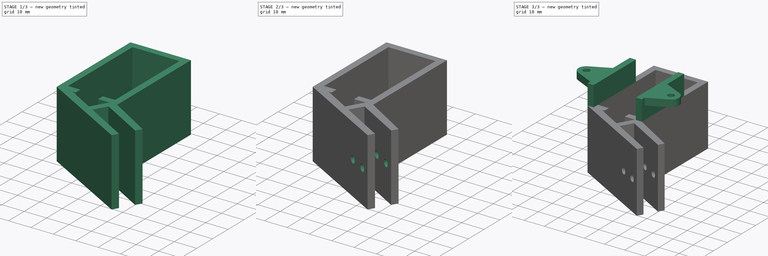
[diagram: build sequence overview — one tinted view per stage of 3, left to right]
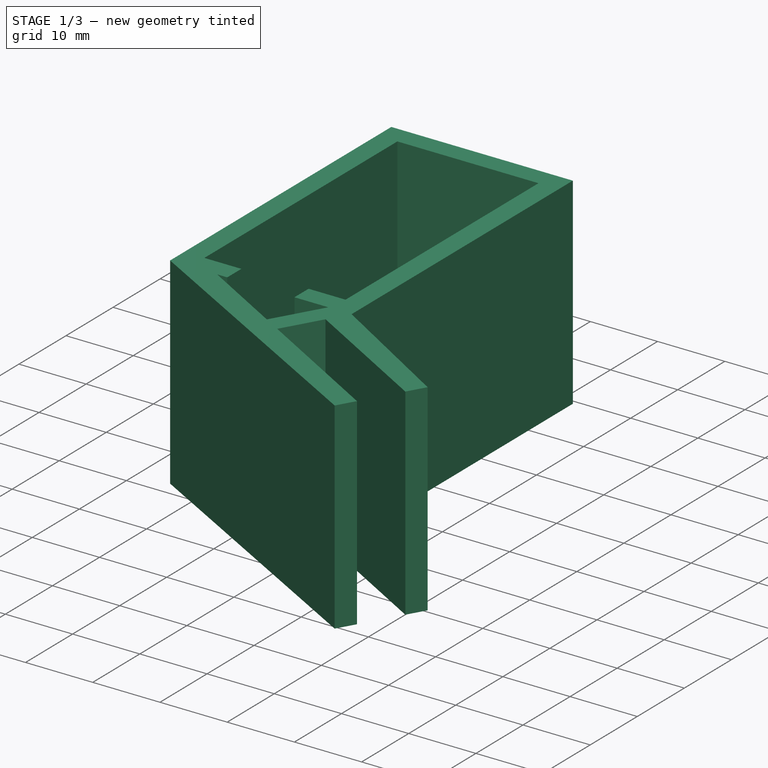
[diagram: stage 1 of 3 — iso view after this stage's code; geometry added in this stage tinted green]
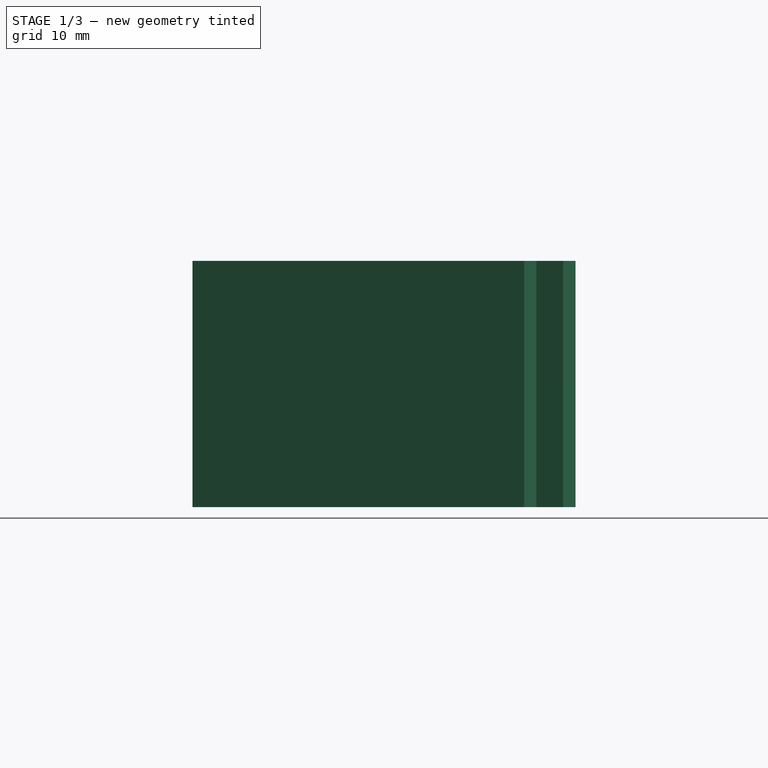
[diagram: stage 1 of 3 — front view after this stage's code; geometry added in this stage tinted green]
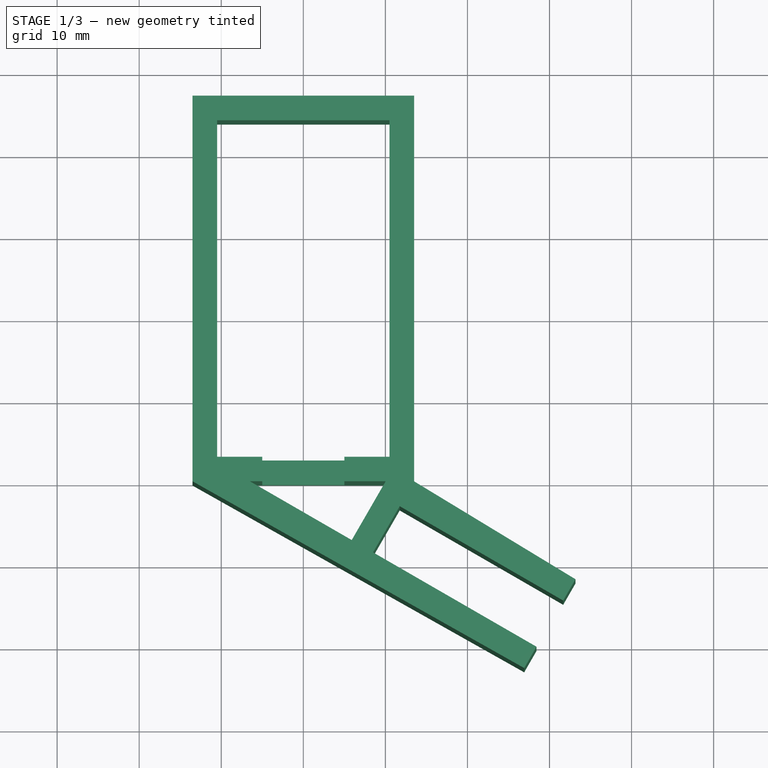
[diagram: stage 1 of 3 — top view after this stage's code; geometry added in this stage tinted green]
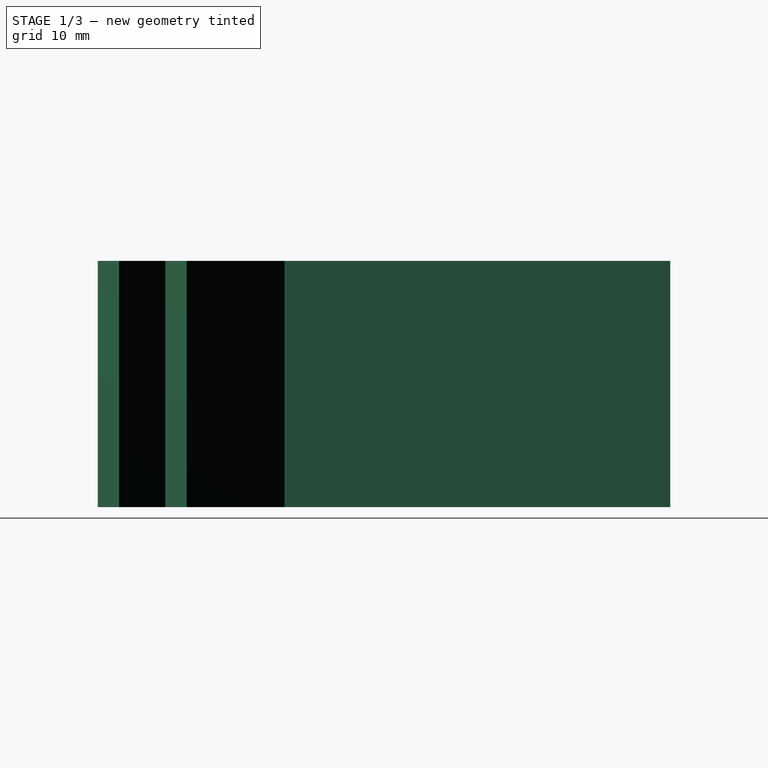
[diagram: stage 1 of 3 — right view after this stage's code; geometry added in this stage tinted green]
FCSTD DOCUMENT  (FreeCAD 0.20R29603 (Git))
Label: 4_UpperArm_v2
License: All rights reserved
LicenseURL: http://en.wikipedia.org/wiki/All_rights_reserved
objects: Sketcher::SketchObject×5, PartDesign::Pad×3, PartDesign::Pocket×2, PartDesign::Body×1
note: 16 computed .brp shape members not serialized (recipe doc carries the construction recipe); baked Part::Feature solids carry a one-line shape summary decoded from their .brp

FEATURE [Sketcher::SketchObject] Sketch
  FullyConstrained = true
  MapMode = 5
  Support = -> [XY_Plane]
  sketch-geometry (22):
    g0: LineSegment StartX=13.5 StartY=0 StartZ=0 EndX=13.5 EndY=47 EndZ=0
    g1: LineSegment StartX=13.5 StartY=47 StartZ=0 EndX=-13.5 EndY=47 EndZ=0
    g2: LineSegment StartX=-13.5 StartY=47 StartZ=0 EndX=-13.5 EndY=0 EndZ=0
    g3: LineSegment StartX=-10.5 StartY=3 StartZ=0 EndX=10.5 EndY=3 EndZ=0
    g4: LineSegment StartX=10.5 StartY=3 StartZ=0 EndX=10.5 EndY=44 EndZ=0
    g5: LineSegment StartX=10.5 StartY=44 StartZ=0 EndX=-10.5 EndY=44 EndZ=0
    g6: LineSegment StartX=-10.5 StartY=44 StartZ=0 EndX=-10.5 EndY=3 EndZ=0
    g7: LineSegment StartX=0 StartY=0 StartZ=0 EndX=30.0436 EndY=-17.3457 EndZ=0
    g8: LineSegment StartX=-13.5 StartY=0 StartZ=0 EndX=26.9186 EndY=-22.7583 EndZ=0
    g9: LineSegment StartX=13.5 StartY=0 StartZ=0 EndX=33.1686 EndY=-11.933 EndZ=0
    g10: LineSegment StartX=26.9186 StartY=-22.7583 StartZ=0 EndX=28.4186 EndY=-20.1603 EndZ=0
    g11: LineSegment StartX=28.4186 StartY=-20.1603 StartZ=0 EndX=8.5 EndY=-8.66025 EndZ=0
    g12: LineSegment StartX=8.5 StartY=-8.66025 StartZ=0 EndX=11.75 EndY=-3.03109 EndZ=0
    g13: LineSegment StartX=11.75 StartY=-3.03109 StartZ=0 EndX=31.6686 EndY=-14.5311 EndZ=0
    g14: LineSegment StartX=31.6686 StartY=-14.5311 StartZ=0 EndX=33.1686 EndY=-11.933 EndZ=0
    g15: LineSegment StartX=26.9186 StartY=-22.7583 StartZ=0 EndX=33.1686 EndY=-11.933 EndZ=0
    g16: LineSegment StartX=-6.5 StartY=0 StartZ=0 EndX=10.0359 EndY=0 EndZ=0
    g17: LineSegment StartX=-6.5 StartY=0 StartZ=0 EndX=5.90192 EndY=-7.16025 EndZ=0
    g18: LineSegment StartX=5.90192 StartY=-7.16025 StartZ=0 EndX=10.0359 EndY=0 EndZ=0
    g19: LineSegment StartX=5.90192 StartY=-7.16025 StartZ=0 EndX=8.5 EndY=-8.66025 EndZ=0
    g20: LineSegment StartX=11.75 StartY=-3.03109 StartZ=0 EndX=13.5 EndY=0 EndZ=0
    g21: GeomPoint X=10.125 Y=-5.84567 Z=0
  constraints (57):
    c: Coincident(g0,g1)
    c: Coincident(g1,g2)
    c: Vertical(g0)
    c: Vertical(g2)
    c: PointOnObject(g2,g-1)
    c: Symmetric(g1,g0,g-2)
    c: Coincident(g3,g4)
    c: Coincident(g4,g5)
    c: Coincident(g5,g6)
    c: Coincident(g6,g3)
    c: Horizontal(g3)
    c: Vertical(g4)
    c: Vertical(g6)
    c: Symmetric(g5,g4,g-2)
    c: DistanceX(g3,g3) = 21
    c: DistanceY(g4,g4) = 41
    c: DistanceY(g0,g3) = 3
    c: DistanceX(g4,g0) = 3
    c: DistanceY(g4,g0) = 3
    c: Coincident(g7,g-1)
    c: Symmetric(g8,g9,g7)
    c: Coincident(g10,g8)
    c: Coincident(g13,g12)
    c: Coincident(g14,g9)
    c: Symmetric(g11,g12,g7)
    c: Coincident(g12,g11)
    c: Distance(g12) = 6.5
    c: Symmetric(g13,g10,g7)
    c: Coincident(g14,g13)
    c: Distance(g10) = 3
    c: Coincident(g11,g10)
    c: Parallel(g11,g7)
    c: Coincident(g15,g8)
    c: Coincident(g15,g9)
    c: PointOnObject(g10,g15)
    c: PointOnObject(g7,g15)
    c: Coincident(g0,g9)
    c: PointOnObject(g0,g-1)
    c: Angle(g7,g-1) = 0.523599
    c: Coincident(g8,g2)
    c: PointOnObject(g16,g-1)
    c: PointOnObject(g16,g-1)
    c: Coincident(g17,g16)
    c: Coincident(g18,g16)
    c: Parallel(g18,g12)
    c: Coincident(g17,g18)
    c: Coincident(g19,g17)
    c: Coincident(g19,g11)
    c: Parallel(g19,g11)
    c: Parallel(g17,g19)
    c: Coincident(g20,g12)
    c: Coincident(g20,g0)
    c: Parallel(g12,g20)
    c: Distance(g19) = 3
    c: PointOnObject(g21,g12)
    c: PointOnObject(g21,g7)
    c: Distance(g21,g7) = 23
FEATURE [PartDesign::Pad] Pad
  Direction = (0,0,1)
  Length = 30
  Length2 = 10
  Profile = -> Sketch
  ReferenceAxis = -> Sketch [N_Axis]
  Type = 0
FEATURE [Sketcher::SketchObject] Sketch001
  ExternalGeometry = -> [Pad]
  FullyConstrained = true
  MapMode = 5
  Placement = pos=(0,3,0) rot=(0,0.707107,0.707107;3.14159rad)
  Support = -> [Pad]
  sketch-geometry (4):
    g0: LineSegment StartX=-5 StartY=30 StartZ=0 EndX=5 EndY=30 EndZ=0
    g1: LineSegment StartX=5 StartY=30 StartZ=0 EndX=5 EndY=3 EndZ=0
    g2: LineSegment StartX=5 StartY=3 StartZ=0 EndX=-5 EndY=3 EndZ=0
    g3: LineSegment StartX=-5 StartY=3 StartZ=0 EndX=-5 EndY=30 EndZ=0
  constraints (11):
    c: Coincident(g0,g1)
    c: Coincident(g1,g2)
    c: Coincident(g2,g3)
    c: Coincident(g3,g0)
    c: Horizontal(g2)
    c: Vertical(g1)
    c: Vertical(g3)
    c: PointOnObject(g0,g-3)
    c: Symmetric(g0,g0,g-2)
    c: DistanceX(g0,g0) = 10
    c: DistanceY(g1,g1) = 27
FEATURE [PartDesign::Pocket] Pocket
  BaseFeature = -> Pad
  Direction = (0,-1,2e-16)
  Length = 3.1
  Length2 = 5
  Profile = -> Sketch001
  ReferenceAxis = -> Sketch001 [N_Axis]
  Type = 0
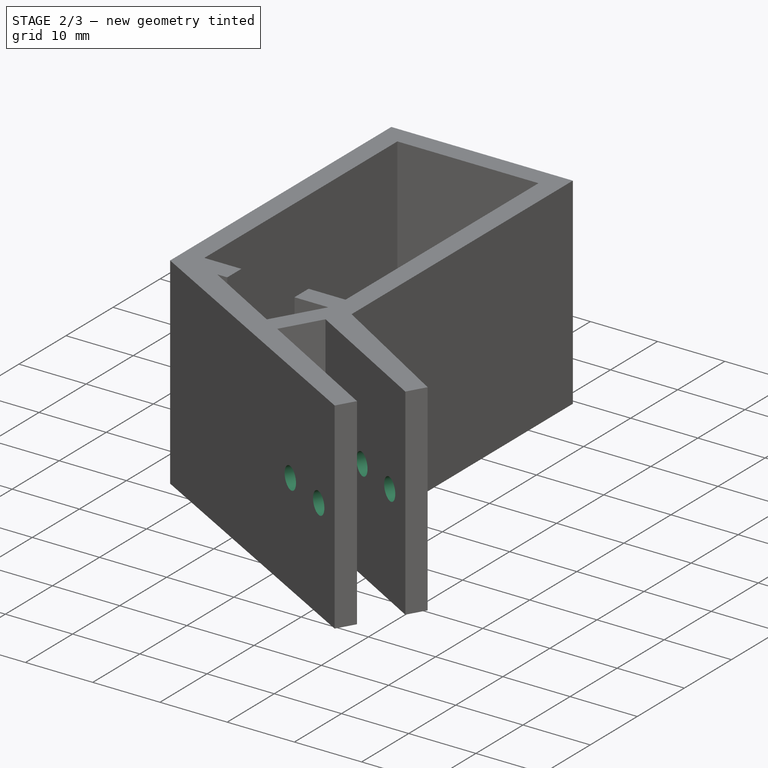
[diagram: stage 2 of 3 — iso view after this stage's code; geometry added in this stage tinted green]
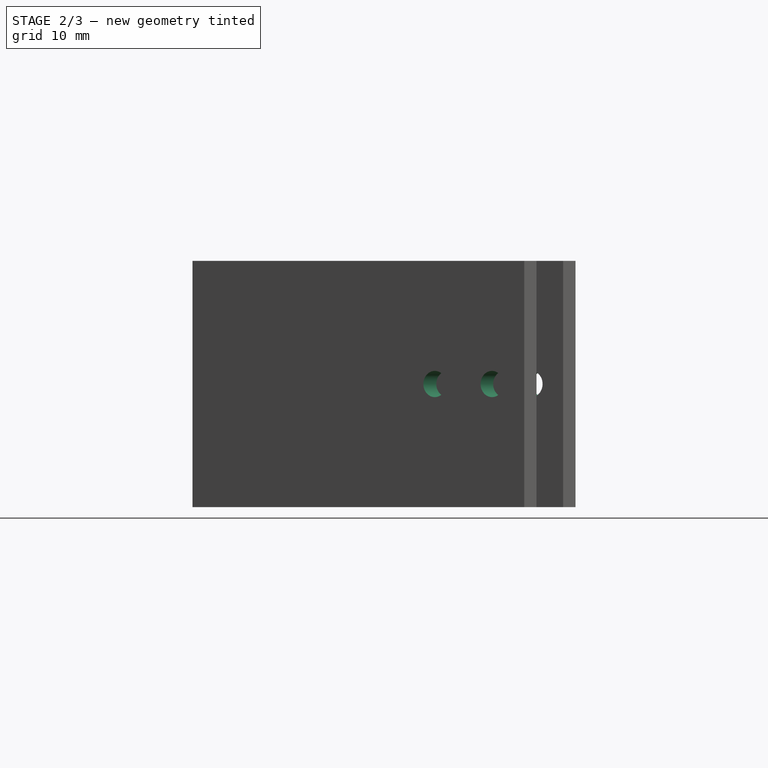
[diagram: stage 2 of 3 — front view after this stage's code; geometry added in this stage tinted green]
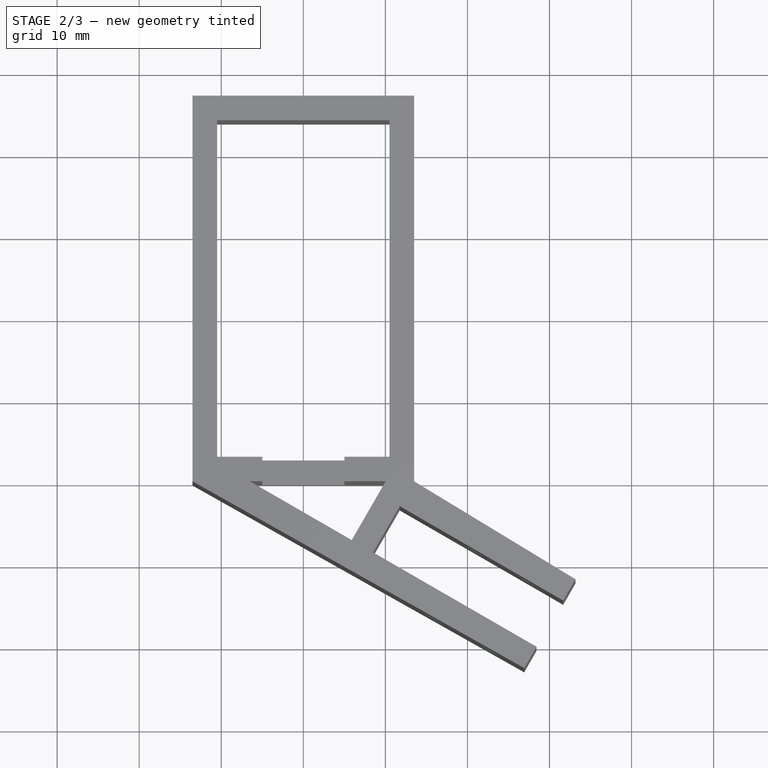
[diagram: stage 2 of 3 — top view after this stage's code; geometry added in this stage tinted green]
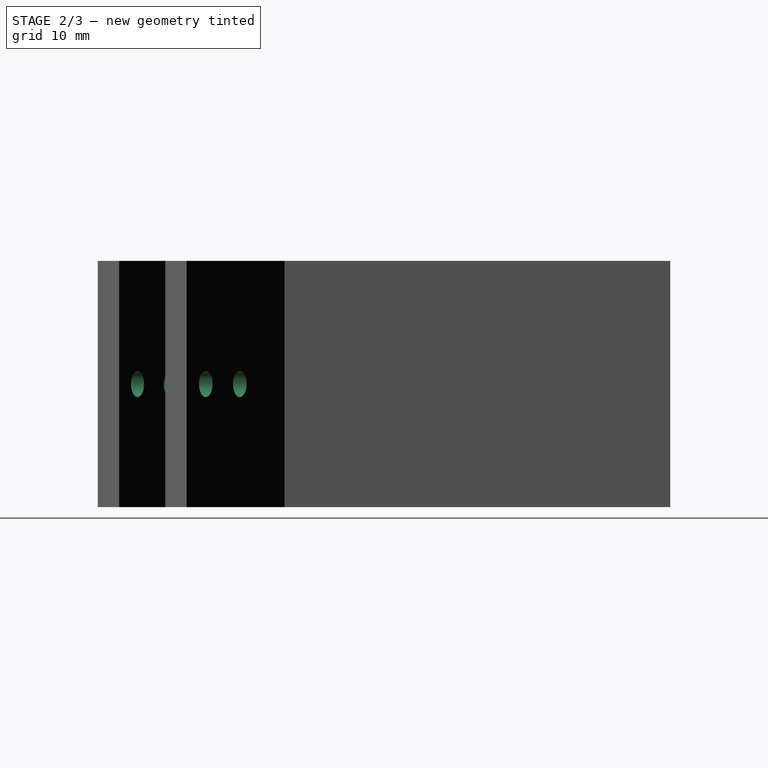
[diagram: stage 2 of 3 — right view after this stage's code; geometry added in this stage tinted green]
FEATURE [Sketcher::SketchObject] Sketch002
  ExternalGeometry = -> [Pocket]
  FullyConstrained = true
  MapMode = 5
  Placement = pos=(-1.625,-2.81458,0) rot=(0.186157,0.694747,0.694747;2.77349rad)
  Support = -> [Pocket]
  sketch-geometry (3):
    g0: LineSegment StartX=-30.1913 StartY=15 StartZ=0 EndX=-22.1913 EndY=15 EndZ=0
    g1: Circle CenterX=-30.1913 CenterY=15 CenterZ=0 NormalX=0 NormalY=0 NormalZ=1 AngleXU=0 Radius=1.6
    g2: Circle CenterX=-22.1913 CenterY=15 CenterZ=0 NormalX=0 NormalY=0 NormalZ=1 AngleXU=0 Radius=1.6
  constraints (7):
    c: DistanceX(g0,g0) = 8
    c: Equal(g1,g2)
    c: Diameter(g1) = 3.2
    c: Coincident(g1,g0)
    c: Coincident(g2,g0)
    c: DistanceX(g-3,g1) = 4.5
    c: Symmetric(g-3,g-4,g0)
FEATURE [PartDesign::Pocket] Pocket001
  BaseFeature = -> Pocket
  Direction = (-0.5,-0.866025,-1e-16)
  Length = 25
  Length2 = 5
  Midplane = true
  Profile = -> Sketch002
  ReferenceAxis = -> Sketch002 [N_Axis]
  Type = 0
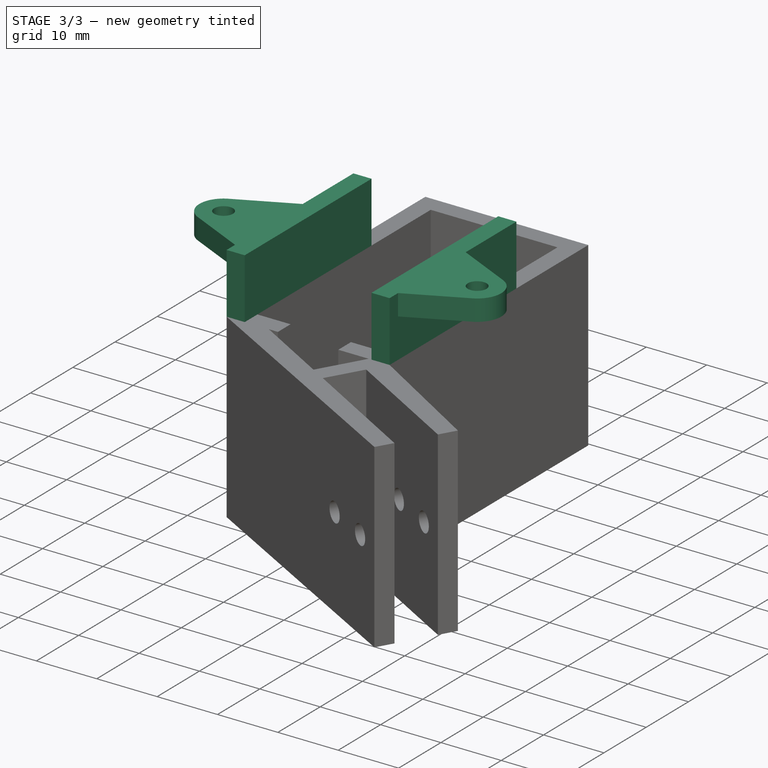
[diagram: stage 3 of 3 — iso view after this stage's code; geometry added in this stage tinted green]
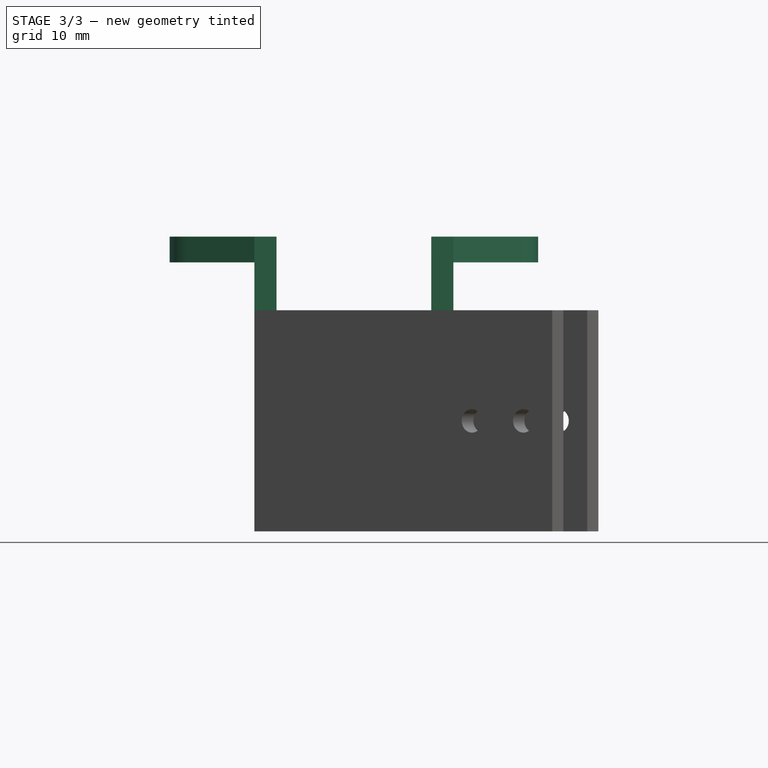
[diagram: stage 3 of 3 — front view after this stage's code; geometry added in this stage tinted green]
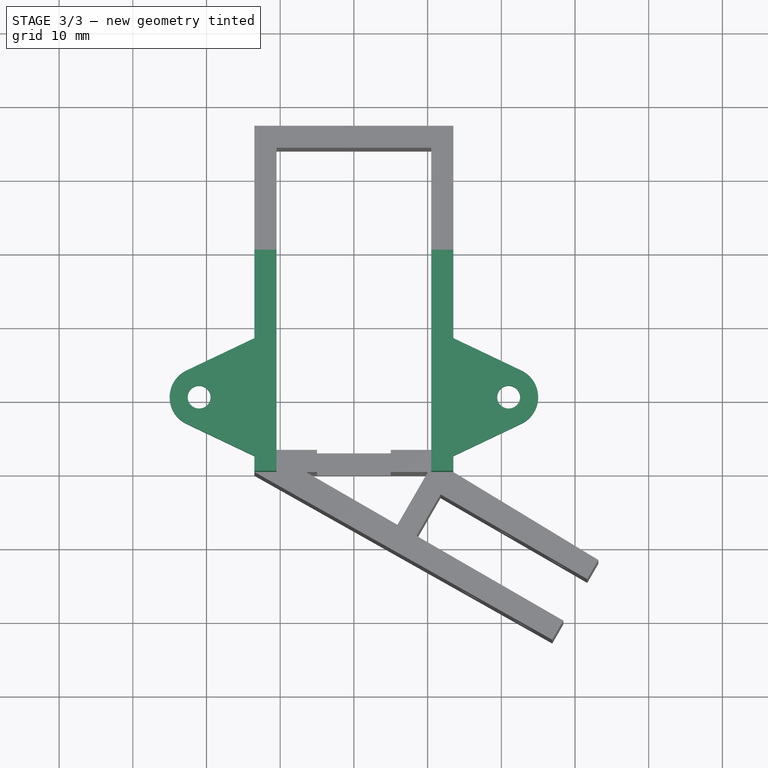
[diagram: stage 3 of 3 — top view after this stage's code; geometry added in this stage tinted green]
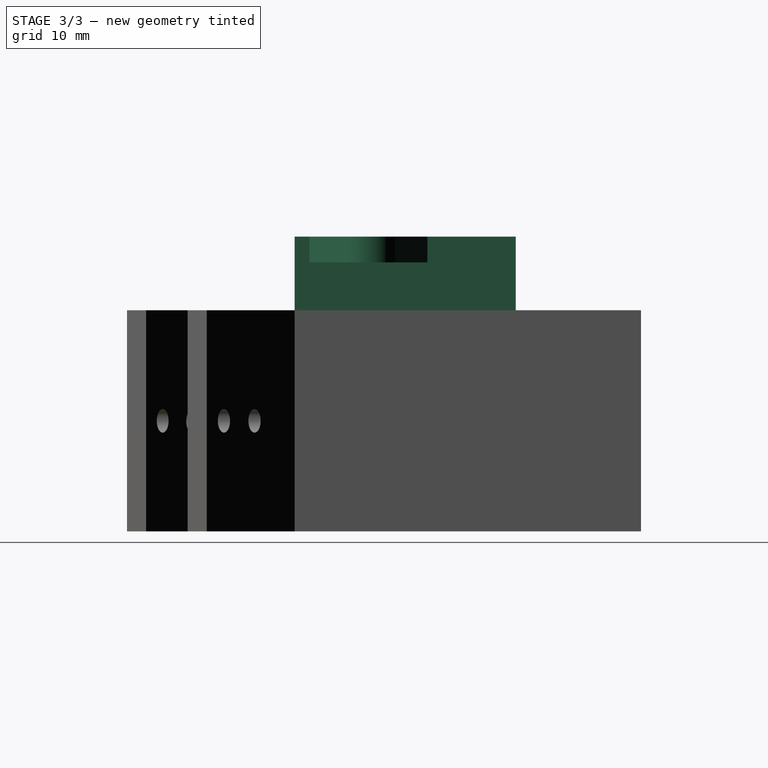
[diagram: stage 3 of 3 — right view after this stage's code; geometry added in this stage tinted green]
FEATURE [Sketcher::SketchObject] Sketch003
  ExternalGeometry = -> [Pocket001]
  FullyConstrained = true
  MapMode = 5
  Placement = pos=(0,0,30) rot=(0,0,1;0rad)
  Support = -> [Pocket001]
  sketch-geometry (8):
    g0: LineSegment StartX=-13.5 StartY=0 StartZ=0 EndX=-10.5 EndY=0 EndZ=0
    g1: LineSegment StartX=-10.5 StartY=0 StartZ=0 EndX=-10.5 EndY=30 EndZ=0
    g2: LineSegment StartX=-10.5 StartY=30 StartZ=0 EndX=-13.5 EndY=30 EndZ=0
    g3: LineSegment StartX=-13.5 StartY=30 StartZ=0 EndX=-13.5 EndY=0 EndZ=0
    g4: LineSegment StartX=10.5 StartY=0 StartZ=0 EndX=13.5 EndY=0 EndZ=0
    g5: LineSegment StartX=13.5 StartY=0 StartZ=0 EndX=13.5 EndY=30 EndZ=0
    g6: LineSegment StartX=13.5 StartY=30 StartZ=0 EndX=10.5 EndY=30 EndZ=0
    g7: LineSegment StartX=10.5 StartY=30 StartZ=0 EndX=10.5 EndY=0 EndZ=0
  constraints (21):
    c: Coincident(g0,g1)
    c: Coincident(g1,g2)
    c: Coincident(g2,g3)
    c: Coincident(g3,g0)
    c: Horizontal(g0)
    c: Horizontal(g2)
    c: Vertical(g1)
    c: Vertical(g3)
    c: Coincident(g4,g5)
    c: Coincident(g5,g6)
    c: Coincident(g6,g7)
    c: Coincident(g7,g4)
    c: Horizontal(g4)
    c: Horizontal(g6)
    c: Vertical(g5)
    c: Vertical(g7)
    c: PointOnObject(g1,g-4)
    c: Coincident(g0,g-3)
    c: DistanceY(g3,g3) = 30
    c: Symmetric(g4,g0,g-2)
    c: Symmetric(g5,g2,g-2)
FEATURE [PartDesign::Pad] Pad001
  BaseFeature = -> Pocket001
  Direction = (0,0,1)
  Length = 10
  Length2 = 10
  Profile = -> Sketch003
  ReferenceAxis = -> Sketch003 [N_Axis]
  Type = 0
FEATURE [Sketcher::SketchObject] Sketch004
  ExternalGeometry = -> [Pad001]
  FullyConstrained = true
  MapMode = 5
  Placement = pos=(0,0,40) rot=(0,0,1;0rad)
  Support = -> [Pad001]
  sketch-geometry (11):
    g0: Circle CenterX=-21 CenterY=10 CenterZ=0 NormalX=0 NormalY=0 NormalZ=1 AngleXU=0 Radius=1.55
    g1: LineSegment StartX=-13.5 StartY=18 StartZ=0 EndX=-13.5 EndY=2 EndZ=0
    g2: LineSegment StartX=-13.5 StartY=2 StartZ=0 EndX=-22.7192 EndY=6.38829 EndZ=0
    g3: LineSegment StartX=-13.5 StartY=18 StartZ=0 EndX=-22.7192 EndY=13.6117 EndZ=0
    g4: ArcOfCircle CenterX=-21 CenterY=10 CenterZ=0 NormalX=0 NormalY=0 NormalZ=1 AngleXU=0 Radius=4 StartAngle=2.01506 EndAngle=4.26813
    g5: Circle CenterX=21 CenterY=10 CenterZ=0 NormalX=0 NormalY=0 NormalZ=1 AngleXU=0 Radius=1.55
    g6: LineSegment StartX=22.7192 StartY=6.38829 StartZ=0 EndX=13.5 EndY=2 EndZ=0
    g7: LineSegment StartX=13.5 StartY=2 StartZ=0 EndX=13.5 EndY=18 EndZ=0
    g8: LineSegment StartX=13.5 StartY=18 StartZ=0 EndX=22.7192 EndY=13.6117 EndZ=0
    g9: ArcOfCircle CenterX=21 CenterY=10 CenterZ=0 NormalX=0 NormalY=0 NormalZ=1 AngleXU=0 Radius=4 StartAngle=5.15665 EndAngle=7.40972
    g10: LineSegment StartX=-21 StartY=10 StartZ=0 EndX=21 EndY=10 EndZ=0
  constraints (26):
    c: Vertical(g1)
    c: Coincident(g3,g1)
    c: Coincident(g4,g0)
    c: PointOnObject(g1,g-3)
    c: Coincident(g2,g1)
    c: DistanceY(g1,g1) = 16
    c: Diameter(g0) = 3.1
    c: Coincident(g6,g7)
    c: Vertical(g7)
    c: Coincident(g7,g8)
    c: Coincident(g9,g5)
    c: Symmetric(g1,g6,g-2)
    c: Equal(g1,g7)
    c: Coincident(g10,g0)
    c: Coincident(g10,g5)
    c: DistanceY(g-3,g0) = 10
    c: DistanceX(g10,g10) = 42
    c: Symmetric(g0,g5,g-2)
    c: Equal(g0,g5)
    c: Radius(g4) = 4
    c: Tangent(g4,g3) = -1.5708
    c: Tangent(g4,g2) = 1.5708
    c: Vertical(g3,g2)
    c: Equal(g4,g9)
    c: Tangent(g9,g6) = 1.5708
    c: Tangent(g9,g8) = 1.5708
FEATURE [PartDesign::Pad] Pad002
  BaseFeature = -> Pad001
  Direction = (0,0,1)
  Length = 3.5
  Length2 = 10
  Profile = -> Sketch004
  ReferenceAxis = -> Sketch004 [N_Axis]
  Reversed = true
  Type = 0
FEATURE [PartDesign::Body] Body
  Group = -> [Sketch,Pad,Sketch001,Pocket,Sketch002,Pocket001,Sketch003,Pad001,Sketch004,Pad002]
  Origin = -> Origin
  Tip = -> Pad002
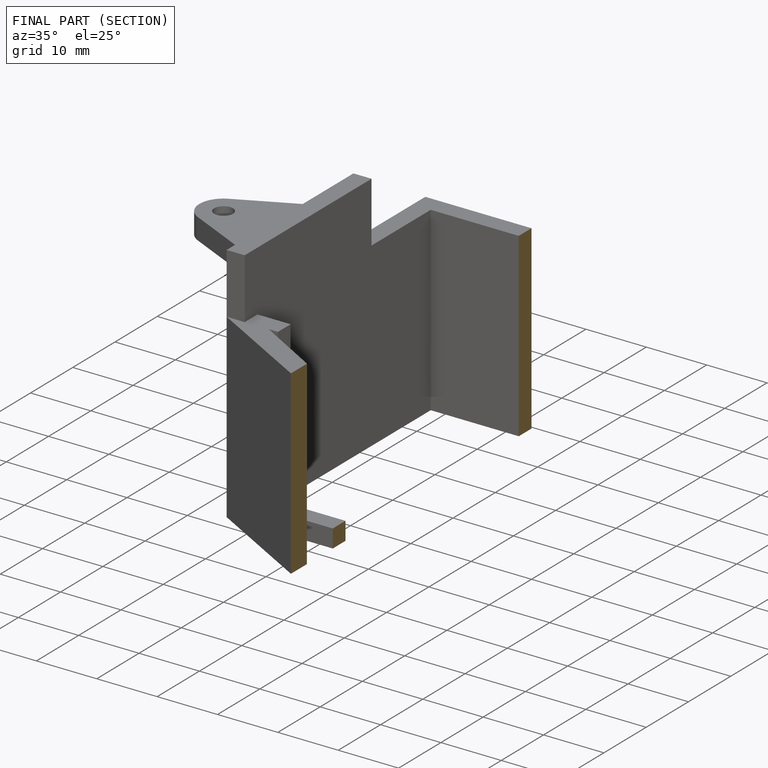
[diagram: finished part — half-section view (interior)]
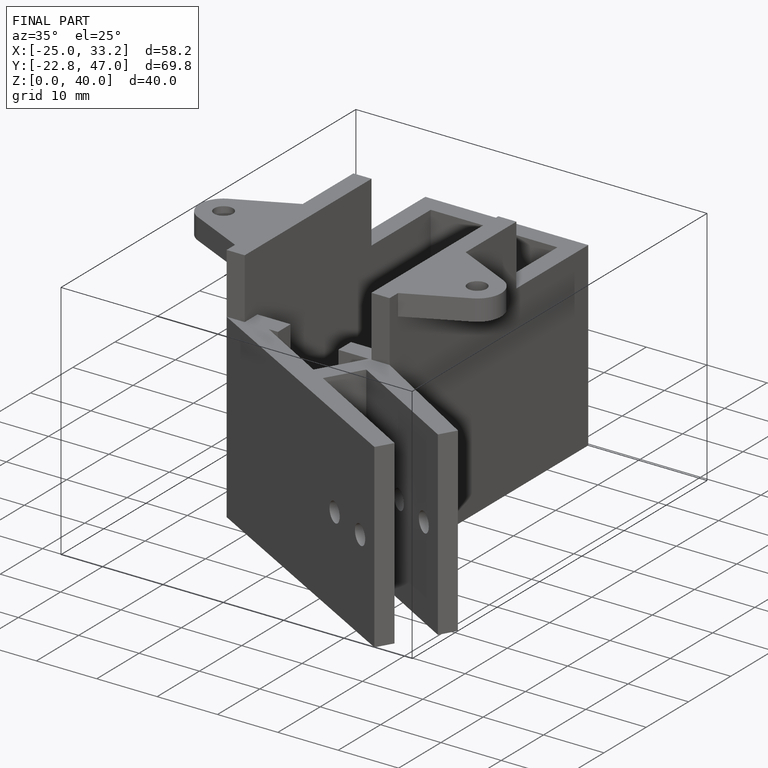
[diagram: finished part — iso view with bounding-box wireframe]
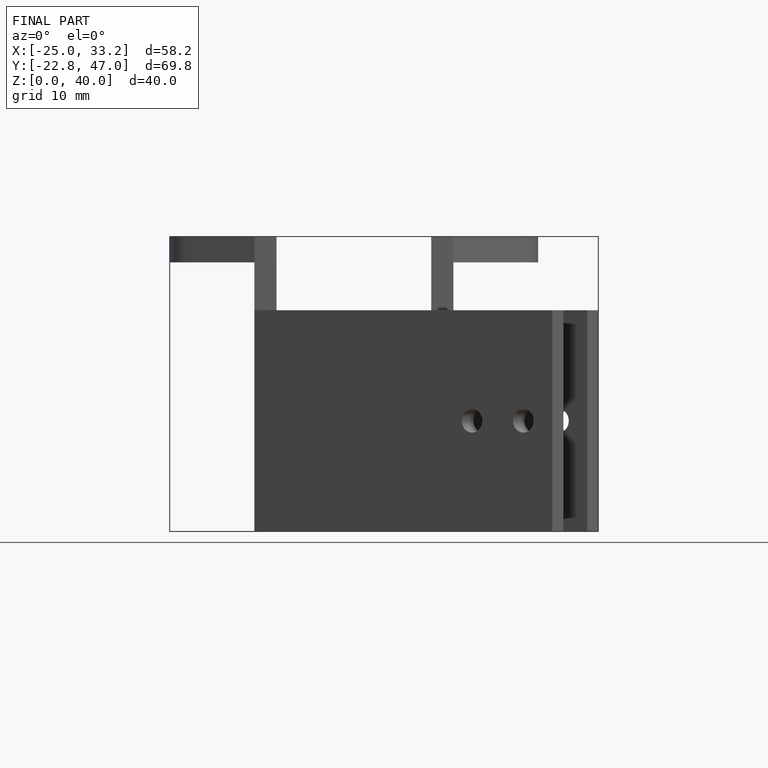
[diagram: finished part — front view with bounding-box wireframe]
